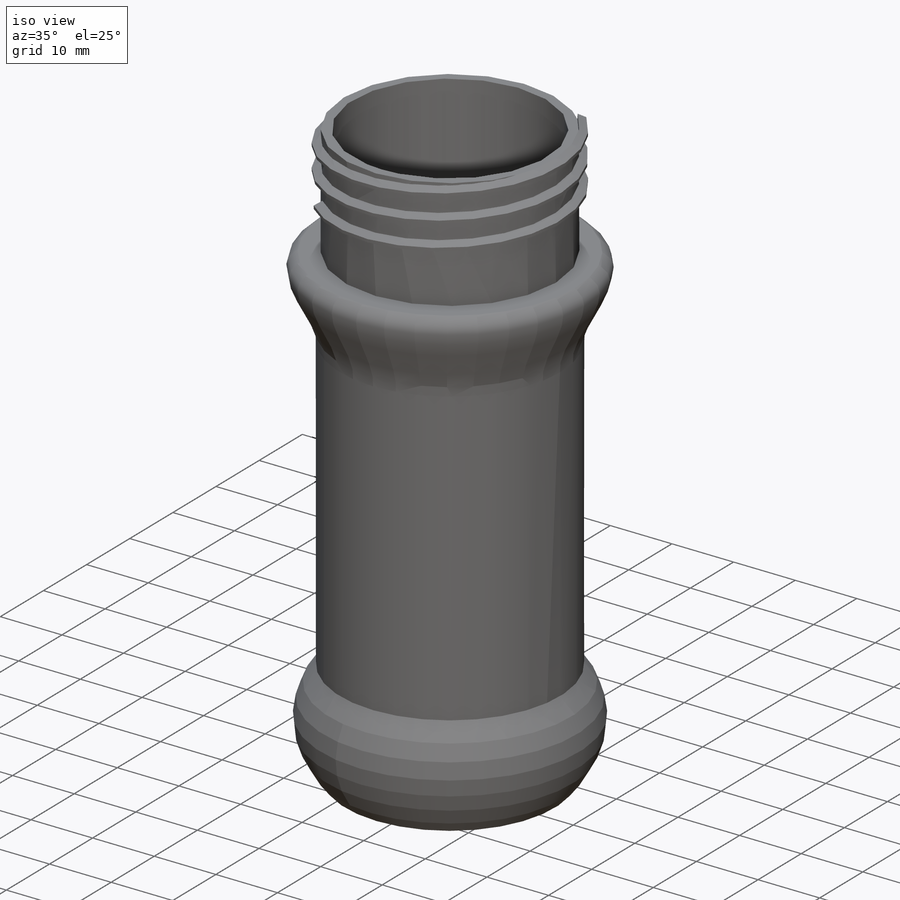
[diagram: iso view]
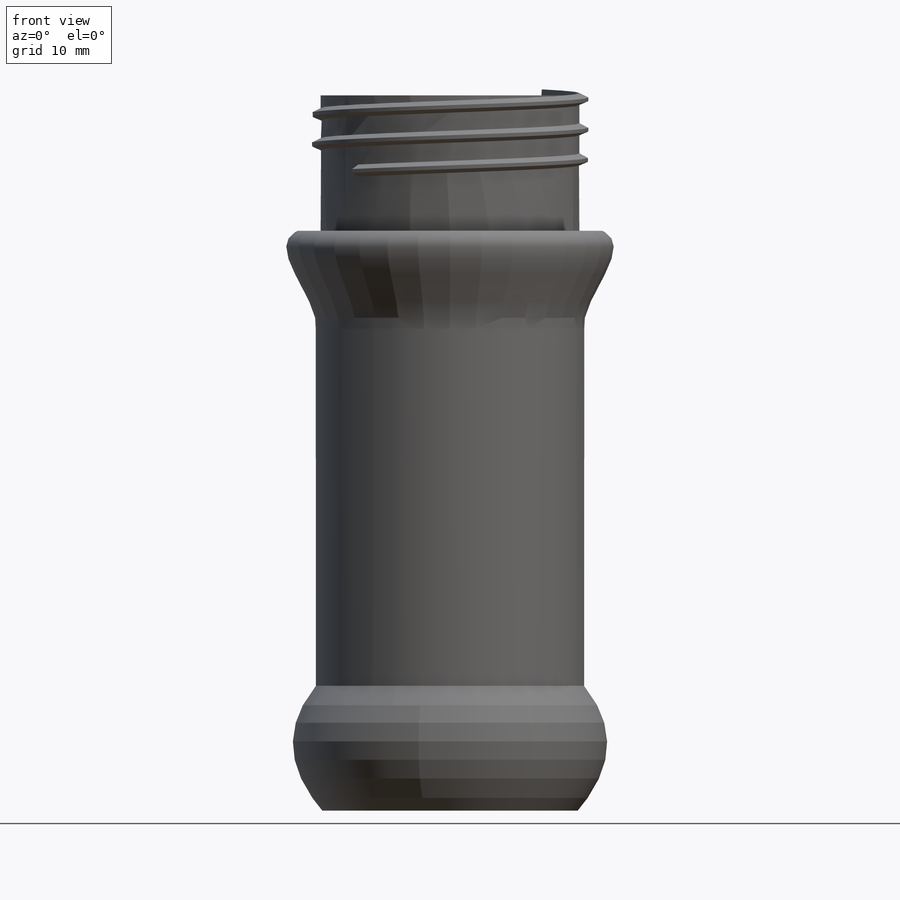
[diagram: front view]
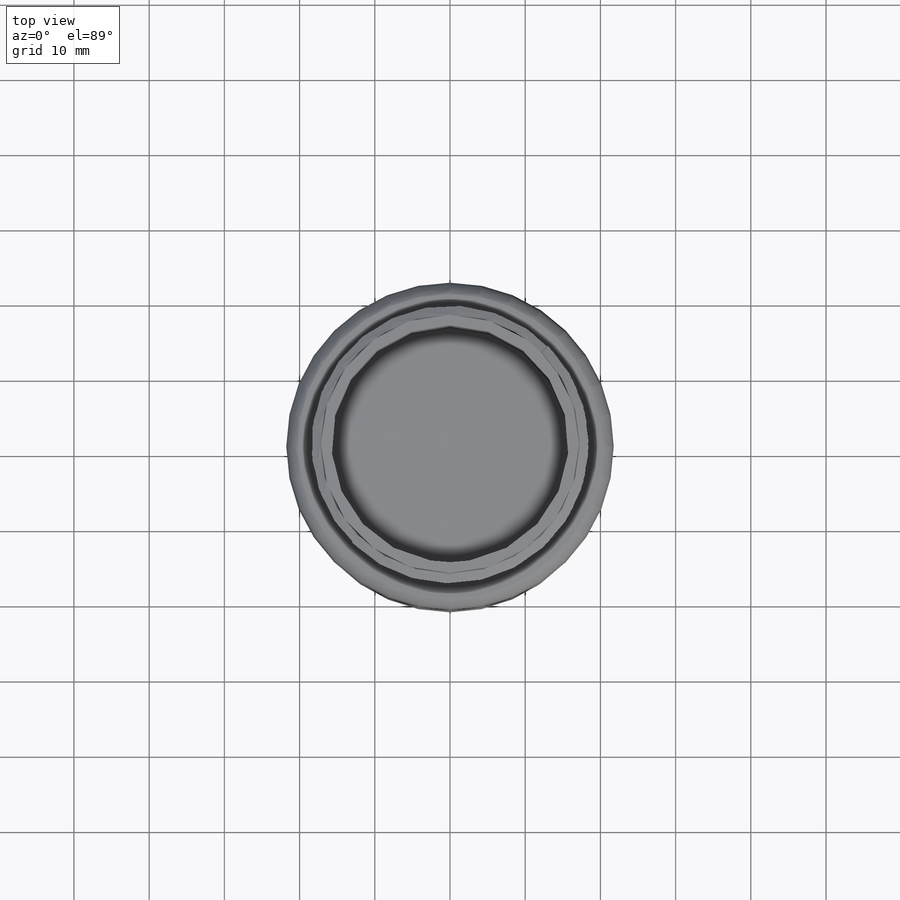
[diagram: top view]
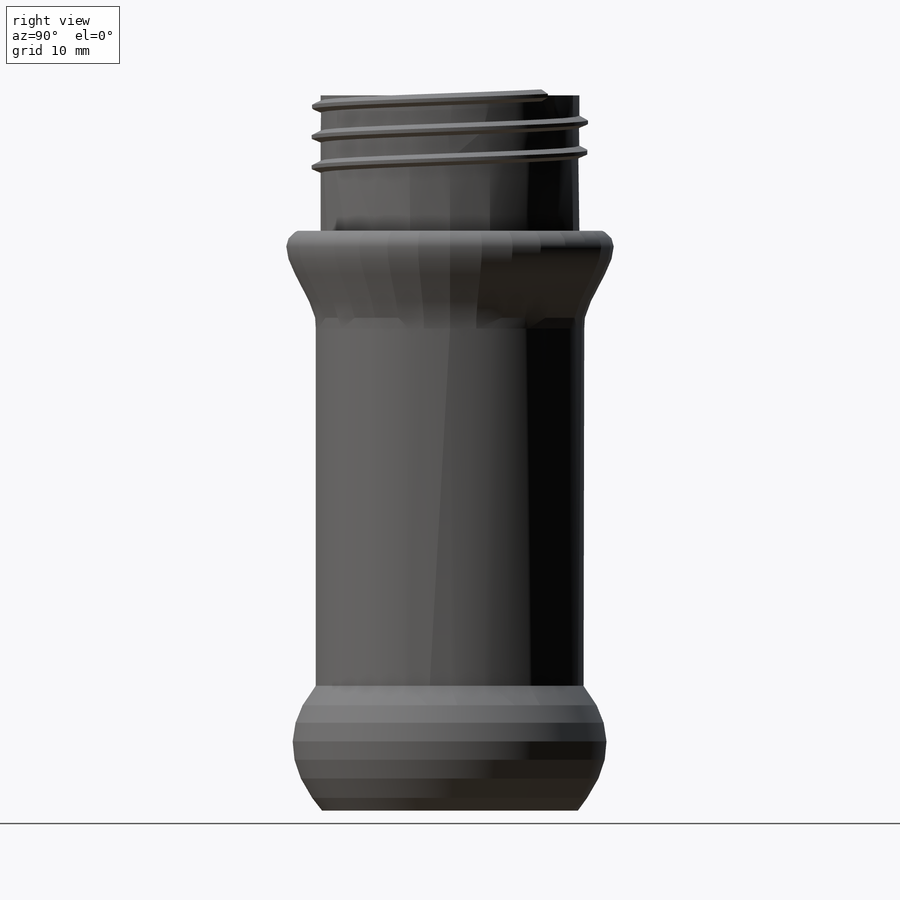
[diagram: right view]
SOLIDWORKS PART (.sldprt)
format: sldprt  version: not decoded by parser v0  size: 304,640 bytes
history: native  units: mm
features: sketch x7, plane x6, sweep x2, extrude x2, material x1, revolve x1, helix x1 (+10 scaffold rows collapsed)
feature tree (30):
  scaffold x10  (default folders/planes/origin — collapsed)
  material  "Материал <не указан>"
  plane  "Спереди"
  plane  "Сверху"
  plane  "Справа"
  sketch  "Эскиз1"  dims[D1=~14.579588mm]
  plane  "Плоскость1"
  sketch  "Эскиз2"  dims[D1=17.0mm]
  sweep  "По траектории5"
  sketch  "Эскиз3"  dims[D1=35.7mm]
  extrude  "Бобышка-Вытянуть1"  Depth=47.5mm
  sketch  "Эскиз4"  dims[D1=~0.036331mm]
  plane  "Плоскость2"  Offset=5mm
  revolve  "Повернуть1"  Angle=360deg
  sketch  "Эскиз5"  dims[D1=15.8mm]
  extrude  "Бобышка-Вытянуть2"  Depth=18mm
  sketch  "Эскиз8"  dims[D1=17.15mm]
  helix  "Спираль1"  Pitch=10mm
  plane  "Плоскость4"
  sketch  "Эскиз9"  dims[D1=~1.320038mm]
  sweep  "По траектории6"
decode coverage: 11 of 13 modeling features carry decoded parameters
note: ~ marks probable driven/reference dimensions
note: suppression state not decoded; provenance and decode notes live in map.json
